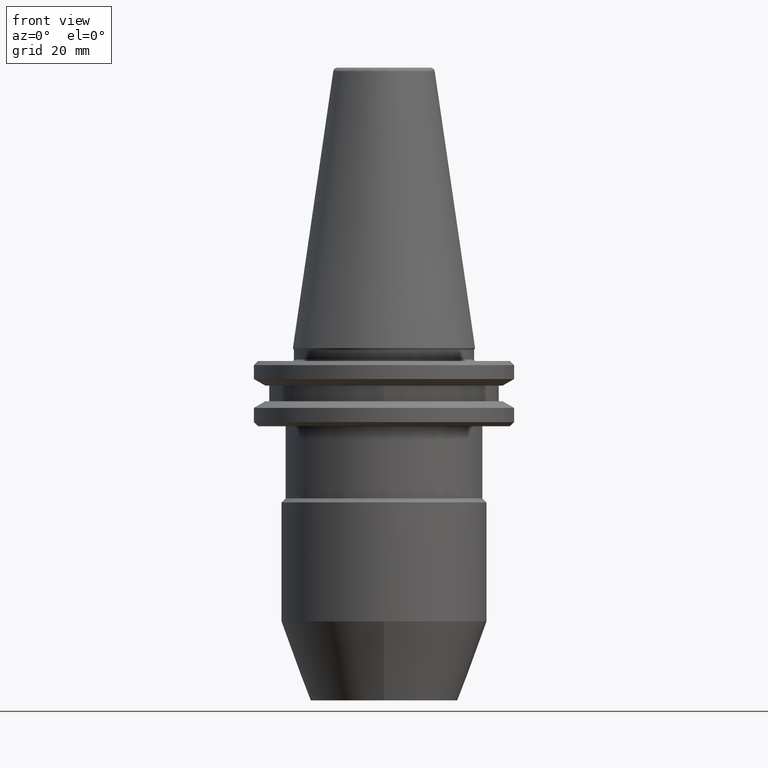
[diagram: clean part render]
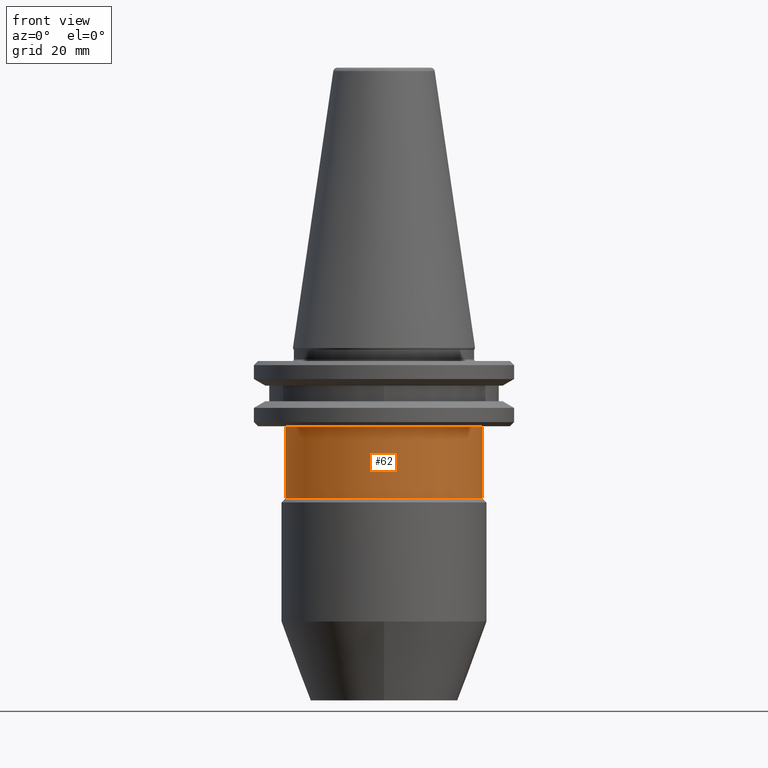
[diagram: same view with one face highlighted and labeled with its STEP entity id]
A machine part, front view. The second image highlights one B-rep face of the part: STEP entity #62.
In plain terms, the highlighted cylindrical surface (partial cylindrical patch) has radius 24 mm, axis along (0, 0, 1).
Its self-contained STEP definition (entity closure, byte-faithful):
#3 = VECTOR ( 'NONE', #142, 1000.000000000000000 ) ;
#24 = VECTOR ( 'NONE', #808, 1000.000000000000000 ) ;
#30 = LINE ( 'NONE', #36, #3 ) ;
#36 = CARTESIAN_POINT ( 'NONE',  ( 24.00000000000000000, 0.0000000000000000000, -36.70000000000000300 ) ) ;
#54 = CIRCLE ( 'NONE', #1097, 24.00000000000000000 ) ;
#62 = ADVANCED_FACE ( 'NONE', ( #169 ), #195, .T. ) ;
#74 = DIRECTION ( 'NONE',  ( 0.0000000000000000000, 0.0000000000000000000, 1.000000000000000000 ) ) ;
#142 = DIRECTION ( 'NONE',  ( 0.0000000000000000000, 0.0000000000000000000, 1.000000000000000000 ) ) ;
#169 = FACE_OUTER_BOUND ( 'NONE', #717, .T. ) ;
#195 = CYLINDRICAL_SURFACE ( 'NONE', #547, 24.00000000000000000 ) ;
#260 = VERTEX_POINT ( 'NONE', #477 ) ;
#284 = ORIENTED_EDGE ( 'NONE', *, *, #325, .T. ) ;
#321 = CARTESIAN_POINT ( 'NONE',  ( -24.00000000000000000, 2.939152317953647900E-015, -36.70000000000000300 ) ) ;
#325 = EDGE_CURVE ( 'NONE', #260, #764, #54, .T. ) ;
#339 = VERTEX_POINT ( 'NONE', #1036 ) ;
#348 = EDGE_CURVE ( 'NONE', #764, #339, #30, .T. ) ;
#351 = DIRECTION ( 'NONE',  ( 1.000000000000000000, 0.0000000000000000000, 0.0000000000000000000 ) ) ;
#353 = CARTESIAN_POINT ( 'NONE',  ( 0.0000000000000000000, 0.0000000000000000000, -36.70000000000000300 ) ) ;
#383 = EDGE_CURVE ( 'NONE', #260, #851, #1098, .T. ) ;
#428 = CARTESIAN_POINT ( 'NONE',  ( 0.0000000000000000000, 0.0000000000000000000, -36.70000000000000300 ) ) ;
#477 = CARTESIAN_POINT ( 'NONE',  ( -24.00000000000000000, 0.0000000000000000000, -36.70000000000000300 ) ) ;
#527 = DIRECTION ( 'NONE',  ( 1.000000000000000000, 0.0000000000000000000, 0.0000000000000000000 ) ) ;
#547 = AXIS2_PLACEMENT_3D ( 'NONE', #353, #554, #351 ) ;
#554 = DIRECTION ( 'NONE',  ( 0.0000000000000000000, 0.0000000000000000000, 1.000000000000000000 ) ) ;
#619 = ORIENTED_EDGE ( 'NONE', *, *, #647, .F. ) ;
#647 = EDGE_CURVE ( 'NONE', #851, #339, #872, .T. ) ;
#683 = CARTESIAN_POINT ( 'NONE',  ( 0.0000000000000000000, 0.0000000000000000000, -19.10000000000000100 ) ) ;
#717 = EDGE_LOOP ( 'NONE', ( #813, #284, #849, #619 ) ) ;
#764 = VERTEX_POINT ( 'NONE', #796 ) ;
#781 = DIRECTION ( 'NONE',  ( 1.000000000000000000, 0.0000000000000000000, 0.0000000000000000000 ) ) ;
#796 = CARTESIAN_POINT ( 'NONE',  ( 24.00000000000000000, 3.000384657911014300E-015, -36.70000000000000300 ) ) ;
#808 = DIRECTION ( 'NONE',  ( 0.0000000000000000000, 0.0000000000000000000, 1.000000000000000000 ) ) ;
#813 = ORIENTED_EDGE ( 'NONE', *, *, #383, .F. ) ;
#849 = ORIENTED_EDGE ( 'NONE', *, *, #348, .T. ) ;
#851 = VERTEX_POINT ( 'NONE', #1212 ) ;
#872 = CIRCLE ( 'NONE', #1001, 24.00000000000000000 ) ;
#1001 = AXIS2_PLACEMENT_3D ( 'NONE', #683, #74, #781 ) ;
#1036 = CARTESIAN_POINT ( 'NONE',  ( 24.00000000000000000, 0.0000000000000000000, -19.10000000000000100 ) ) ;
#1097 = AXIS2_PLACEMENT_3D ( 'NONE', #428, #1141, #527 ) ;
#1098 = LINE ( 'NONE', #321, #24 ) ;
#1141 = DIRECTION ( 'NONE',  ( 0.0000000000000000000, 0.0000000000000000000, 1.000000000000000000 ) ) ;
#1212 = CARTESIAN_POINT ( 'NONE',  ( -24.00000000000000000, 2.939152317953647900E-015, -19.10000000000000100 ) ) ;